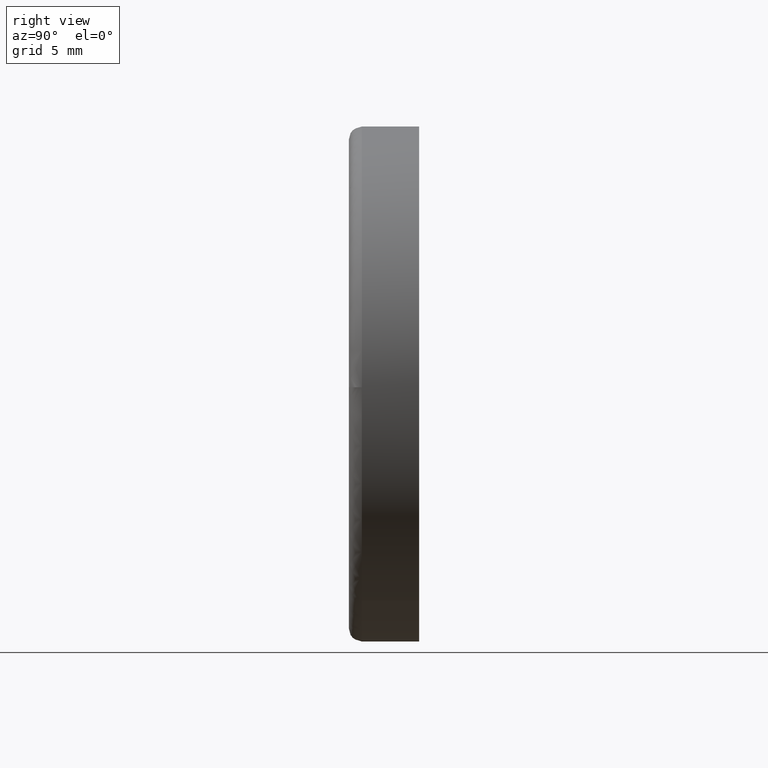
[diagram: clean part render]
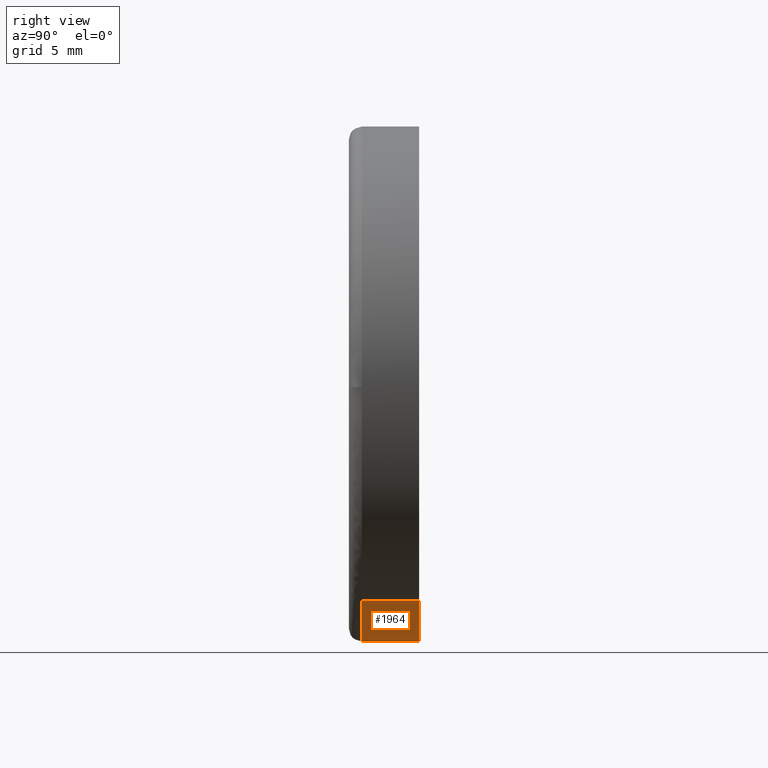
[diagram: same view with one face highlighted and labeled with its STEP entity id]
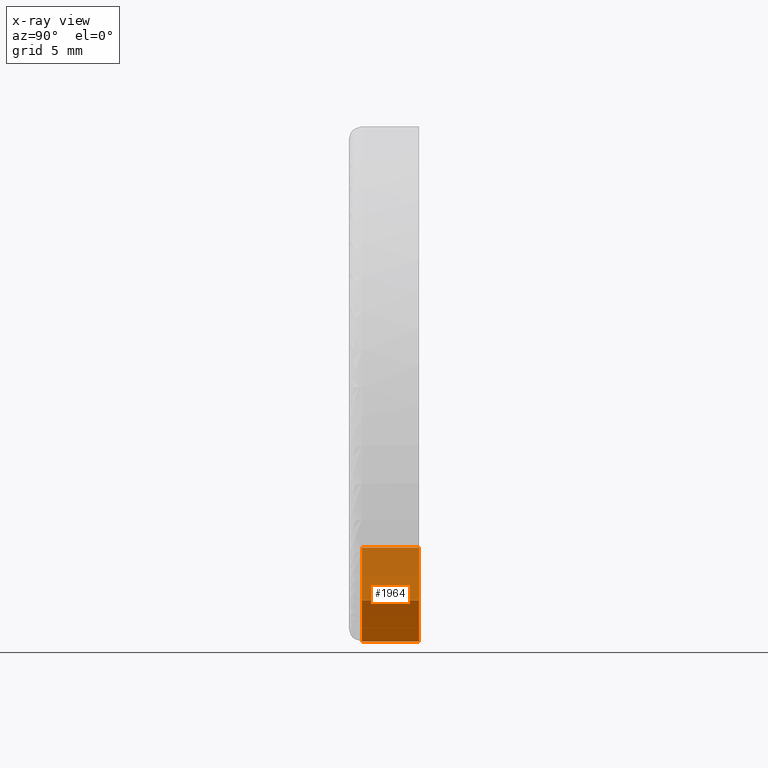
[diagram: x-ray of the same camera — body ghosted, the highlighted face saturated]
A machine part, right view. The second image highlights one B-rep face of the part: STEP entity #1964.
The next image is the same camera in x-ray: the body ghosted, the highlighted face saturated — about 56% of this face is hidden behind the body in this view.
In plain terms, the highlighted face is a freeform B-spline surface patch.
Its self-contained STEP definition (entity closure, byte-faithful):
#1775=CARTESIAN_POINT('',(8.547979167013278,-3.500000000049371,-13.228550878465970));
#1776=VERTEX_POINT('',#1775);
#1792=CARTESIAN_POINT('',(8.547979103585050,-7.976689E-017,-13.228550685720380));
#1793=VERTEX_POINT('',#1792);
#1794=CARTESIAN_POINT('',(8.547979103585050,-7.976689E-017,-13.228550685720380));
#1795=CARTESIAN_POINT('',(8.547979167013278,-3.500000000049371,-13.228550878465970));
#1796=QUASI_UNIFORM_CURVE('',1,(#1794,#1795),.UNSPECIFIED.,.F.,.U.);
#1797=EDGE_CURVE('',#1793,#1776,#1796,.T.);
#1816=CARTESIAN_POINT('',(-12.153087403182800,-8.326673E-017,-10.018231708769729));
#1817=VERTEX_POINT('',#1816);
#1833=CARTESIAN_POINT('',(-12.153088230401339,-3.500000000075693,-10.018231323085290));
#1834=VERTEX_POINT('',#1833);
#1835=CARTESIAN_POINT('',(-12.153087403182800,-8.326673E-017,-10.018231708769729));
#1836=CARTESIAN_POINT('',(-12.153088230401339,-3.500000000075693,-10.018231323085290));
#1837=QUASI_UNIFORM_CURVE('',1,(#1835,#1836),.UNSPECIFIED.,.F.,.U.);
#1838=EDGE_CURVE('',#1817,#1834,#1837,.T.);
#1890=CARTESIAN_POINT('',(-12.153087188356590,0.087500000003493,-10.018231969374780));
#1891=CARTESIAN_POINT('',(-3.231934762669178,0.087500000003493,-20.840455250032576));
#1892=CARTESIAN_POINT('',(8.547979569080434,0.087500000003493,-13.228550384928175));
#1893=CARTESIAN_POINT('',(-12.153087188356590,-3.589687500143293,-10.018231969374780));
#1894=CARTESIAN_POINT('',(-3.231934762669178,-3.589687500143293,-20.840455250032576));
#1895=CARTESIAN_POINT('',(8.547979569080434,-3.589687500143294,-13.228550384928175));
#1903=(BOUNDED_SURFACE()B_SPLINE_SURFACE(2,1,((#1890,#1893),(#1891,#1894),(#1892,#1895)),.UNSPECIFIED.,.F.,.F.,.U.)B_SPLINE_SURFACE_WITH_KNOTS((3,3),(2,2),(0.0,23.981484812411001),(0.0,3.677187500146786),.UNSPECIFIED.)GEOMETRIC_REPRESENTATION_ITEM()RATIONAL_B_SPLINE_SURFACE(((1.0,1.0),(0.730538238691624,0.730538238691624),(0.956886118190660,0.956886118190660)))REPRESENTATION_ITEM('')SURFACE());
#1904=CARTESIAN_POINT('',(0.0,-3.500000000000000,-15.750000000000000));
#1905=VERTEX_POINT('',#1904);
#1906=CARTESIAN_POINT('',(0.0,-3.500000000000000,-15.750000000000000));
#1907=CARTESIAN_POINT('',(4.645872781554924,-3.500000000020780,-15.750000003753549));
#1908=CARTESIAN_POINT('',(8.547979167013278,-3.500000000049372,-13.228550878465974));
#1916=(BOUNDED_CURVE()B_SPLINE_CURVE(2,(#1906,#1907,#1908),.UNSPECIFIED.,.F.,.U.)B_SPLINE_CURVE_WITH_KNOTS((3,3),(0.0,0.092934725483944),.UNSPECIFIED.)CURVE()GEOMETRIC_REPRESENTATION_ITEM()RATIONAL_B_SPLINE_CURVE((1.0,0.891120196453852,0.863190110134160))REPRESENTATION_ITEM(''));
#1917=EDGE_CURVE('',#1905,#1776,#1916,.T.);
#1918=ORIENTED_EDGE('',*,*,#1917,.F.);
#1919=CARTESIAN_POINT('',(-12.153088230401345,-3.500000000075692,-10.018231323085285));
#1920=CARTESIAN_POINT('',(-7.428182938476945,-3.500000000030723,-15.749999969330409));
#1921=CARTESIAN_POINT('',(0.0,-3.500000000000000,-15.750000000000000));
#1929=(BOUNDED_CURVE()B_SPLINE_CURVE(2,(#1919,#1920,#1921),.UNSPECIFIED.,.F.,.U.)B_SPLINE_CURVE_WITH_KNOTS((3,3),(0.860504621867789,1.0),.UNSPECIFIED.)CURVE()GEOMETRIC_REPRESENTATION_ITEM()RATIONAL_B_SPLINE_CURVE((0.855522720123320,0.836570998757028,1.0))REPRESENTATION_ITEM(''));
#1930=EDGE_CURVE('',#1834,#1905,#1929,.T.);
#1931=ORIENTED_EDGE('',*,*,#1930,.F.);
#1932=ORIENTED_EDGE('',*,*,#1838,.F.);
#1933=CARTESIAN_POINT('',(0.0,0.0,-15.750000000000000));
#1934=VERTEX_POINT('',#1933);
#1935=CARTESIAN_POINT('',(-12.153087403182802,-8.326673E-017,-10.018231708769733));
#1936=CARTESIAN_POINT('',(-7.428182658506624,0.0,-15.749999999999996));
#1937=CARTESIAN_POINT('',(0.0,0.0,-15.750000000000000));
#1945=(BOUNDED_CURVE()B_SPLINE_CURVE(2,(#1935,#1936,#1937),.UNSPECIFIED.,.F.,.U.)B_SPLINE_CURVE_WITH_KNOTS((3,3),(0.860504619373459,1.0),.UNSPECIFIED.)CURVE()GEOMETRIC_REPRESENTATION_ITEM()RATIONAL_B_SPLINE_CURVE((0.855522720801075,0.836570995834739,1.0))REPRESENTATION_ITEM(''));
#1946=EDGE_CURVE('',#1817,#1934,#1945,.T.);
#1947=ORIENTED_EDGE('',*,*,#1946,.T.);
#1948=CARTESIAN_POINT('',(0.0,0.0,-15.750000000000000));
#1949=CARTESIAN_POINT('',(4.645872859984373,0.0,-15.750000000000002));
#1950=CARTESIAN_POINT('',(8.547979103585050,-7.976689E-017,-13.228550685720377));
#1958=(BOUNDED_CURVE()B_SPLINE_CURVE(2,(#1948,#1949,#1950),.UNSPECIFIED.,.F.,.U.)B_SPLINE_CURVE_WITH_KNOTS((3,3),(0.0,0.092934732206239),.UNSPECIFIED.)CURVE()GEOMETRIC_REPRESENTATION_ITEM()RATIONAL_B_SPLINE_CURVE((1.0,0.891120188578194,0.863190106093599))REPRESENTATION_ITEM(''));
#1959=EDGE_CURVE('',#1934,#1793,#1958,.T.);
#1960=ORIENTED_EDGE('',*,*,#1959,.T.);
#1961=ORIENTED_EDGE('',*,*,#1797,.T.);
#1962=EDGE_LOOP('',(#1918,#1931,#1932,#1947,#1960,#1961));
#1963=FACE_OUTER_BOUND('',#1962,.T.);
#1964=ADVANCED_FACE('',(#1963),#1903,.T.);